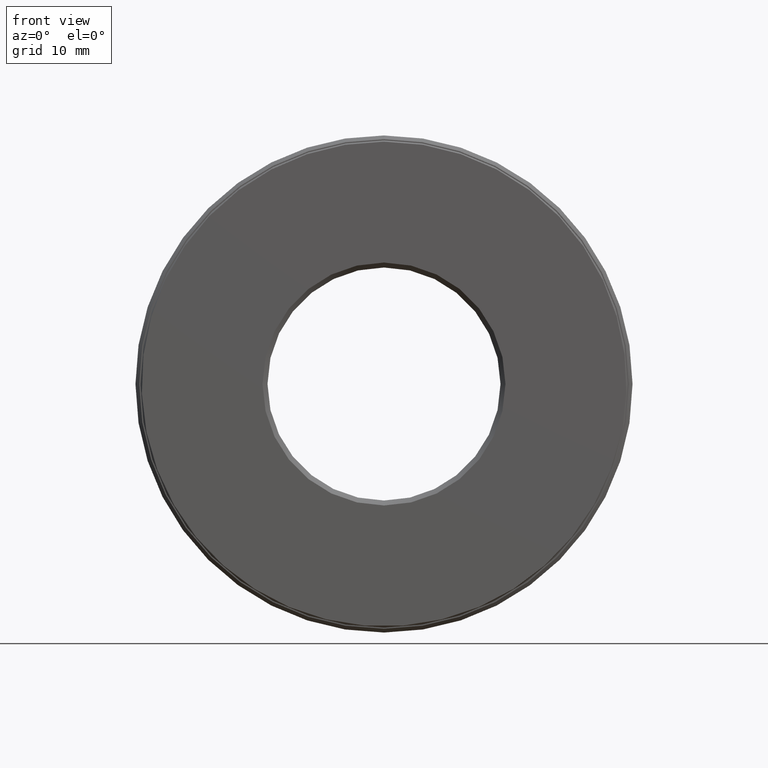
[diagram: clean part render]
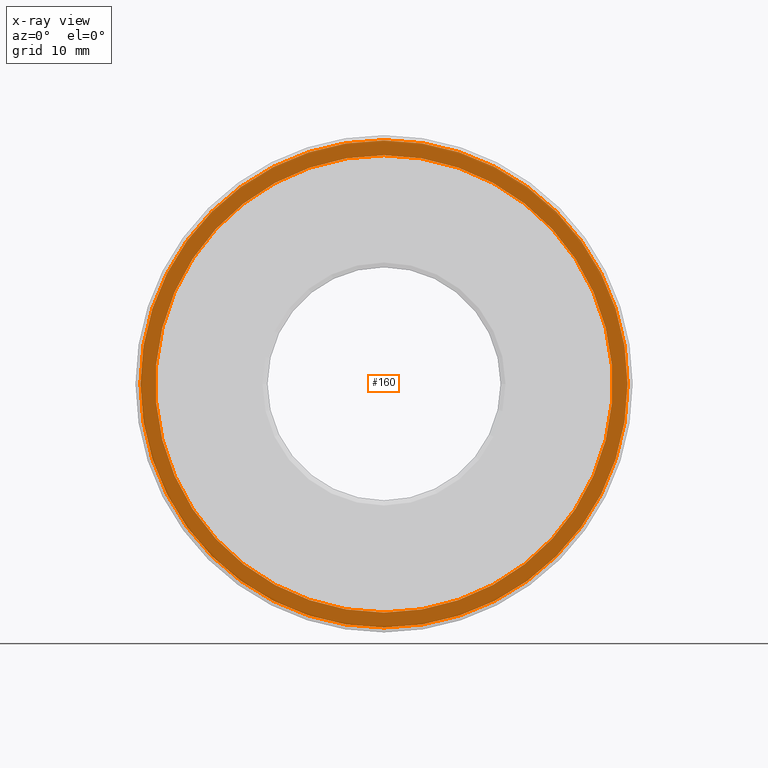
[diagram: x-ray — body ghosted, one internal face saturated and labeled with its STEP entity id]
A machine part, front view, then the same camera in x-ray: the body is ghosted and one INTERNAL B-rep face — a face not visible from any outside direction — is saturated and labeled: STEP entity #160.
In plain terms, the highlighted planar face has unit normal (-0, 1, 0).
Its self-contained STEP definition (entity closure, byte-faithful):
#122 = DIRECTION ( 'NONE',  ( -0.0000000000000000000, 1.000000000000000000, -0.0000000000000000000 ) ) ;
#124 = CARTESIAN_POINT ( 'NONE',  ( 0.0000000000000000000, 0.7774999999999998600, 0.0000000000000000000 ) ) ;
#125 = CARTESIAN_POINT ( 'NONE',  ( 0.0000000000000000000, 0.7774999999999998600, 0.9799999999999999800 ) ) ;
#128 = EDGE_CURVE ( 'NONE', #449, #449, #306, .T. ) ;
#160 = ADVANCED_FACE ( 'NONE', ( #402, #237 ), #497, .F. ) ;
#166 = ORIENTED_EDGE ( 'NONE', *, *, #128, .F. ) ;
#184 = DIRECTION ( 'NONE',  ( -0.0000000000000000000, 1.000000000000000000, -0.0000000000000000000 ) ) ;
#189 = AXIS2_PLACEMENT_3D ( 'NONE', #357, #122, #317 ) ;
#237 = FACE_BOUND ( 'NONE', #387, .T. ) ;
#270 = DIRECTION ( 'NONE',  ( -0.0000000000000000000, 1.000000000000000000, 0.0000000000000000000 ) ) ;
#272 = AXIS2_PLACEMENT_3D ( 'NONE', #416, #184, #462 ) ;
#281 = AXIS2_PLACEMENT_3D ( 'NONE', #124, #270, #308 ) ;
#287 = EDGE_CURVE ( 'NONE', #294, #294, #602, .T. ) ;
#294 = VERTEX_POINT ( 'NONE', #319 ) ;
#306 = CIRCLE ( 'NONE', #189, 0.9799999999999999800 ) ;
#308 = DIRECTION ( 'NONE',  ( 0.0000000000000000000, 0.0000000000000000000, 1.000000000000000000 ) ) ;
#317 = DIRECTION ( 'NONE',  ( 0.0000000000000000000, 0.0000000000000000000, 1.000000000000000000 ) ) ;
#319 = CARTESIAN_POINT ( 'NONE',  ( 0.0000000000000000000, 0.7774999999999998600, 0.9200000000000000400 ) ) ;
#357 = CARTESIAN_POINT ( 'NONE',  ( 0.0000000000000000000, 0.7774999999999998600, 0.0000000000000000000 ) ) ;
#360 = ORIENTED_EDGE ( 'NONE', *, *, #287, .T. ) ;
#387 = EDGE_LOOP ( 'NONE', ( #360 ) ) ;
#402 = FACE_OUTER_BOUND ( 'NONE', #557, .T. ) ;
#416 = CARTESIAN_POINT ( 'NONE',  ( 0.0000000000000000000, 0.7774999999999998600, 0.0000000000000000000 ) ) ;
#449 = VERTEX_POINT ( 'NONE', #125 ) ;
#462 = DIRECTION ( 'NONE',  ( 0.0000000000000000000, 0.0000000000000000000, 1.000000000000000000 ) ) ;
#497 = PLANE ( 'NONE',  #281 ) ;
#557 = EDGE_LOOP ( 'NONE', ( #166 ) ) ;
#602 = CIRCLE ( 'NONE', #272, 0.9200000000000000400 ) ;